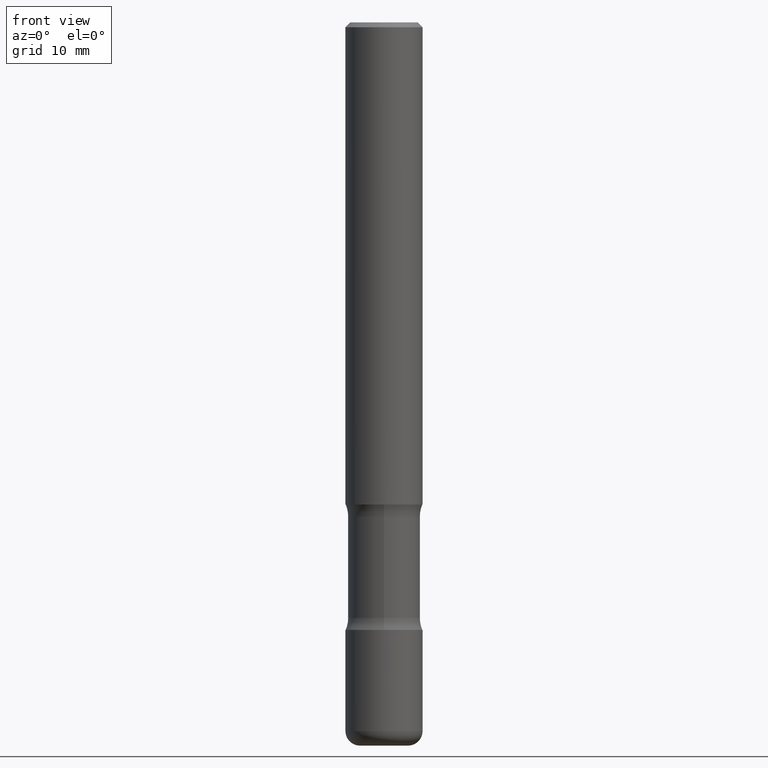
[diagram: clean part render]
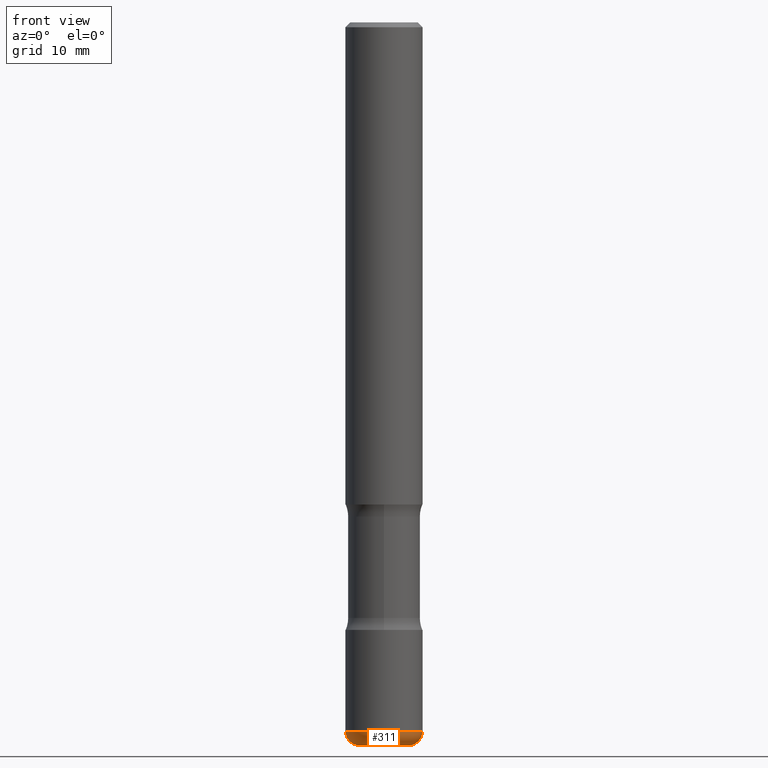
[diagram: same view with one face highlighted and labeled with its STEP entity id]
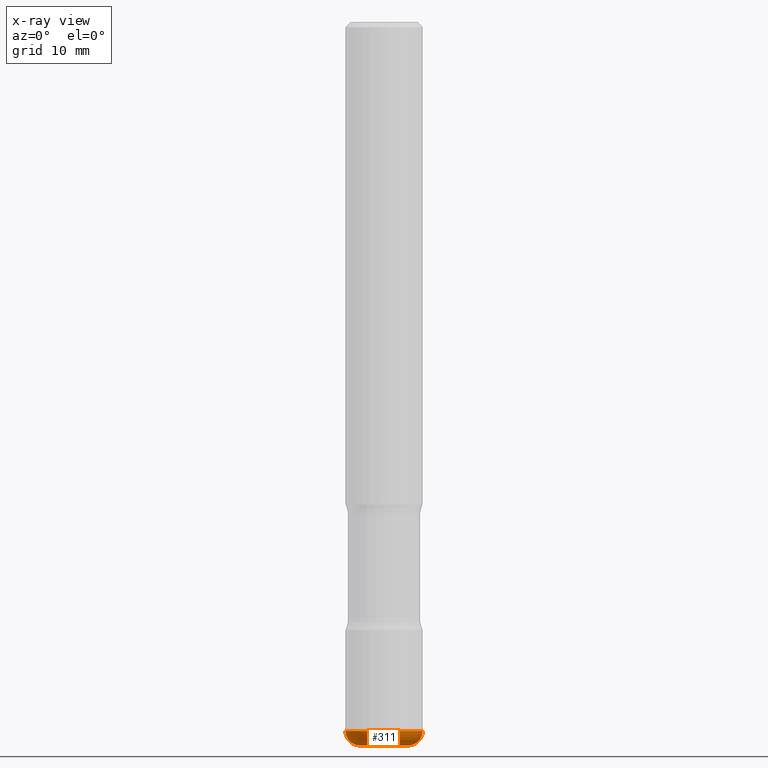
[diagram: x-ray of the same camera — body ghosted, the highlighted face saturated]
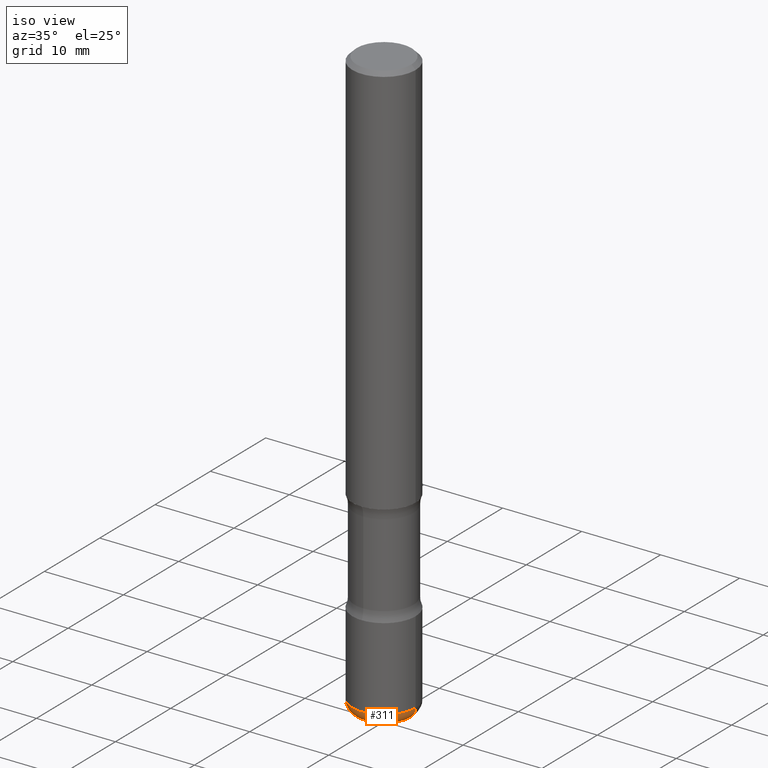
[diagram: same view with one face highlighted and labeled with its STEP entity id]
A machine part, front view. The second image highlights one B-rep face of the part: STEP entity #311.
The next image is the same camera in x-ray: the body ghosted, the highlighted face saturated — about 0% of this face is hidden behind the body in this view.
A second angle (iso view) of the same face is appended — the face is thin or edge-on in the first view.
In plain terms, the highlighted toroidal blend (fillet) surface has major radius 2.4994 mm and minor (blend) radius 1.5011 mm.
Its self-contained STEP definition (entity closure, byte-faithful):
#20 = CARTESIAN_POINT ( 'NONE',  ( -0.09840000000000016789, -9.297333393368175082E-15, -2.952800000000000757 ) ) ;
#38 = CARTESIAN_POINT ( 'NONE',  ( 7.076453084457931092E-29, -1.010329955021041128E-14, -2.893700000000000383 ) ) ;
#49 = VERTEX_POINT ( 'NONE', #68 ) ;
#57 = EDGE_LOOP ( 'NONE', ( #140, #175, #102, #153 ) ) ;
#68 = CARTESIAN_POINT ( 'NONE',  ( -0.1575000000000003064, -8.984194741388252103E-15, -2.893700000000000383 ) ) ;
#72 = CIRCLE ( 'NONE', #391, 0.05910000000000026343 ) ;
#85 = TOROIDAL_SURFACE ( 'NONE', #421, 0.09840000000000016789, 0.05910000000000024956 ) ;
#91 = EDGE_CURVE ( 'NONE', #414, #211, #72, .T. ) ;
#92 = FACE_OUTER_BOUND ( 'NONE', #57, .T. ) ;
#101 = CIRCLE ( 'NONE', #369, 0.09840000000000016789 ) ;
#102 = ORIENTED_EDGE ( 'NONE', *, *, #91, .T. ) ;
#118 = DIRECTION ( 'NONE',  ( -2.445468806185136597E-29, 3.491481338843145583E-15, 1.000000000000000000 ) ) ;
#127 = AXIS2_PLACEMENT_3D ( 'NONE', #425, #559, #263 ) ;
#140 = ORIENTED_EDGE ( 'NONE', *, *, #305, .F. ) ;
#153 = ORIENTED_EDGE ( 'NONE', *, *, #332, .F. ) ;
#172 = CARTESIAN_POINT ( 'NONE',  ( 7.220980290903473546E-29, -1.030964609733604168E-14, -2.952800000000000757 ) ) ;
#173 = CARTESIAN_POINT ( 'NONE',  ( 0.09840000000000016789, -1.079042307769474191E-14, -2.893700000000000383 ) ) ;
#175 = ORIENTED_EDGE ( 'NONE', *, *, #286, .T. ) ;
#211 = VERTEX_POINT ( 'NONE', #506 ) ;
#213 = DIRECTION ( 'NONE',  ( -6.982962677686266711E-15, -1.000000000000000000, 3.491481338843145583E-15 ) ) ;
#217 = DIRECTION ( 'NONE',  ( 1.000000000000000000, -6.982962677686265922E-15, 0.000000000000000000 ) ) ;
#222 = DIRECTION ( 'NONE',  ( -2.445468806185136597E-29, 3.491481338843145583E-15, 1.000000000000000000 ) ) ;
#248 = CIRCLE ( 'NONE', #127, 0.05910000000000026343 ) ;
#263 = DIRECTION ( 'NONE',  ( -1.000000000000000000, 7.105427357600993181E-15, 0.000000000000000000 ) ) ;
#286 = EDGE_CURVE ( 'NONE', #517, #414, #101, .T. ) ;
#294 = CARTESIAN_POINT ( 'NONE',  ( 7.076453084457931092E-29, -1.010329955021041128E-14, -2.893700000000000383 ) ) ;
#305 = EDGE_CURVE ( 'NONE', #517, #49, #248, .T. ) ;
#311 = ADVANCED_FACE ( 'NONE', ( #92 ), #85, .T. ) ;
#326 = DIRECTION ( 'NONE',  ( 1.000000000000000000, -6.982962677686264344E-15, 0.000000000000000000 ) ) ;
#332 = EDGE_CURVE ( 'NONE', #49, #211, #503, .T. ) ;
#339 = DIRECTION ( 'NONE',  ( 1.000000000000000000, -6.982962677686269866E-15, 0.000000000000000000 ) ) ;
#369 = AXIS2_PLACEMENT_3D ( 'NONE', #172, #471, #339 ) ;
#391 = AXIS2_PLACEMENT_3D ( 'NONE', #173, #213, #326 ) ;
#408 = CARTESIAN_POINT ( 'NONE',  ( 0.09840000000000016789, -1.099676962482037231E-14, -2.952800000000000757 ) ) ;
#414 = VERTEX_POINT ( 'NONE', #408 ) ;
#421 = AXIS2_PLACEMENT_3D ( 'NONE', #294, #222, #465 ) ;
#425 = CARTESIAN_POINT ( 'NONE',  ( -0.09840000000000016789, -9.404125498222470818E-15, -2.893700000000000383 ) ) ;
#449 = AXIS2_PLACEMENT_3D ( 'NONE', #38, #118, #217 ) ;
#465 = DIRECTION ( 'NONE',  ( 1.000000000000000000, -6.982962677686267499E-15, 4.883557194083113462E-29 ) ) ;
#471 = DIRECTION ( 'NONE',  ( -2.445468806185136597E-29, 3.491481338843145583E-15, 1.000000000000000000 ) ) ;
#503 = CIRCLE ( 'NONE', #449, 0.1575000000000001954 ) ;
#506 = CARTESIAN_POINT ( 'NONE',  ( 0.1575000000000003064, -1.120311617194600113E-14, -2.893700000000000383 ) ) ;
#517 = VERTEX_POINT ( 'NONE', #20 ) ;
#559 = DIRECTION ( 'NONE',  ( 7.105427357601001859E-15, 1.000000000000000000, -3.491481338843145583E-15 ) ) ;